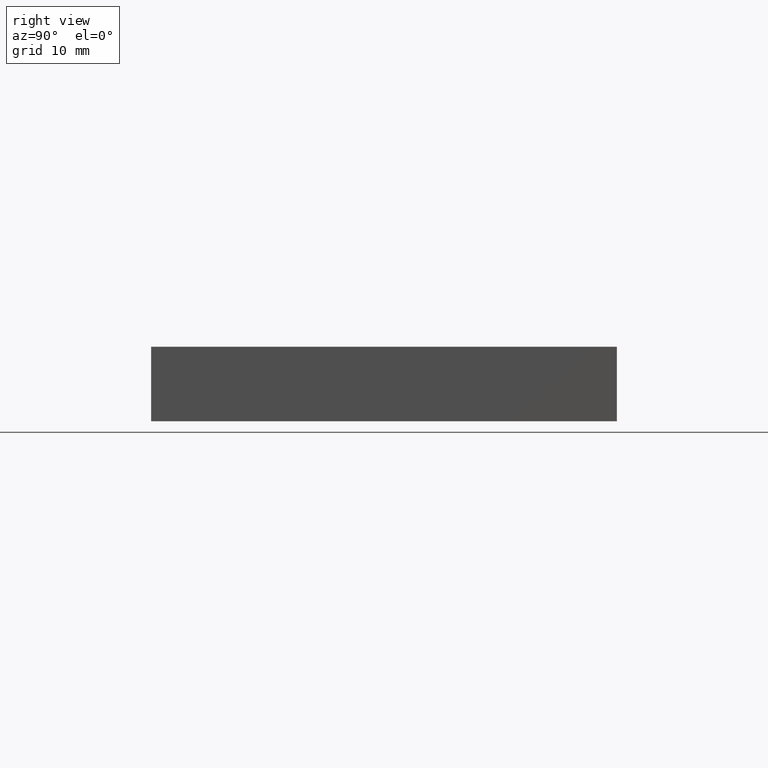
[diagram: clean part render]
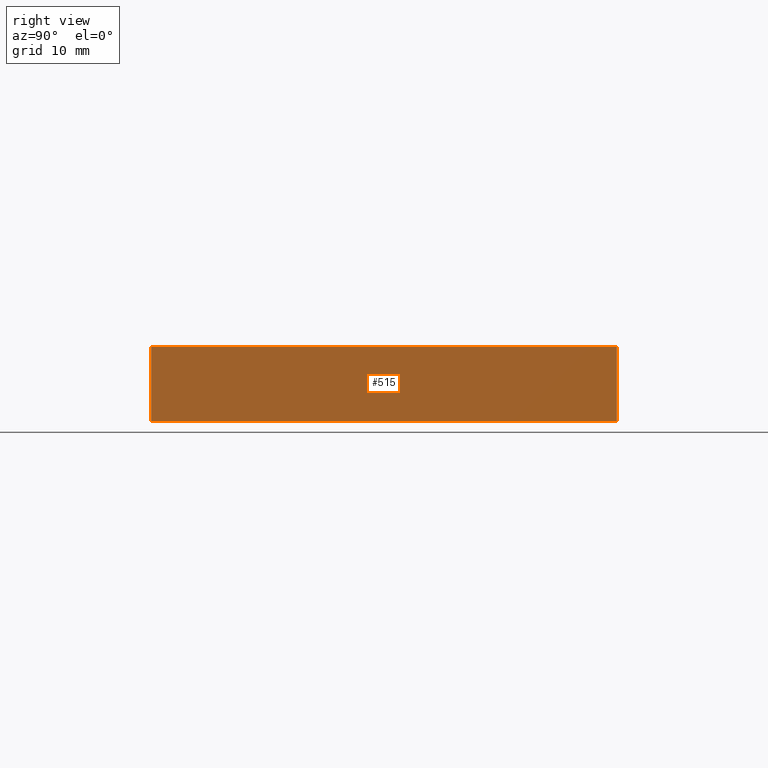
[diagram: same view with one face highlighted and labeled with its STEP entity id]
A machine part, right view. The second image highlights one B-rep face of the part: STEP entity #515.
In plain terms, the highlighted planar face has unit normal (1, 0, 0).
Its self-contained STEP definition (entity closure, byte-faithful):
#476=CARTESIAN_POINT('',(75.939752180801690,-4.027373815230892,0.0));
#477=DIRECTION('',(1.0,0.0,0.0));
#478=DIRECTION('',(0.0,0.0,-1.0));
#479=AXIS2_PLACEMENT_3D('',#476,#477,#478);
#480=PLANE('',#479);
#481=CARTESIAN_POINT('',(75.939752180801690,-4.027373815230892,8.0));
#482=VERTEX_POINT('',#481);
#483=CARTESIAN_POINT('',(75.939752180801733,-54.027373815230888,8.0));
#484=VERTEX_POINT('',#483);
#485=CARTESIAN_POINT('',(75.939752180801690,-4.027373815230892,8.0));
#486=DIRECTION('',(0.0,-1.0,0.0));
#487=VECTOR('',#486,49.999999999999993);
#488=LINE('',#485,#487);
#489=EDGE_CURVE('',#482,#484,#488,.T.);
#490=ORIENTED_EDGE('',*,*,#489,.T.);
#491=CARTESIAN_POINT('',(75.939752180801733,-54.027373815230888,0.0));
#492=VERTEX_POINT('',#491);
#493=CARTESIAN_POINT('',(75.939752180801733,-54.027373815230888,0.0));
#494=DIRECTION('',(0.0,0.0,1.0));
#495=VECTOR('',#494,8.0);
#496=LINE('',#493,#495);
#497=EDGE_CURVE('',#492,#484,#496,.T.);
#498=ORIENTED_EDGE('',*,*,#497,.F.);
#499=CARTESIAN_POINT('',(75.939752180801690,-4.027373815230892,0.0));
#500=VERTEX_POINT('',#499);
#501=CARTESIAN_POINT('',(75.939752180801733,-54.027373815230888,0.0));
#502=DIRECTION('',(0.0,1.0,0.0));
#503=VECTOR('',#502,49.999999999999993);
#504=LINE('',#501,#503);
#505=EDGE_CURVE('',#492,#500,#504,.T.);
#506=ORIENTED_EDGE('',*,*,#505,.T.);
#507=CARTESIAN_POINT('',(75.939752180801690,-4.027373815230892,0.0));
#508=DIRECTION('',(0.0,0.0,1.0));
#509=VECTOR('',#508,8.0);
#510=LINE('',#507,#509);
#511=EDGE_CURVE('',#500,#482,#510,.T.);
#512=ORIENTED_EDGE('',*,*,#511,.T.);
#513=EDGE_LOOP('',(#490,#498,#506,#512));
#514=FACE_OUTER_BOUND('',#513,.T.);
#515=ADVANCED_FACE('',(#514),#480,.T.);